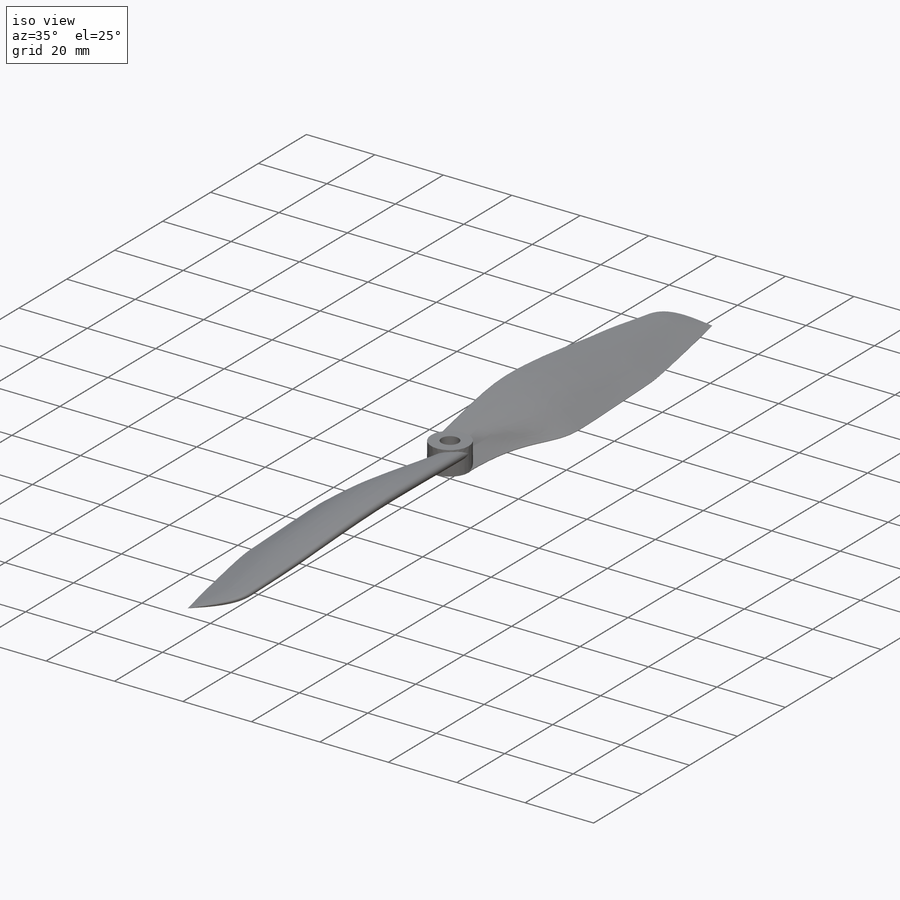
[diagram: iso view]
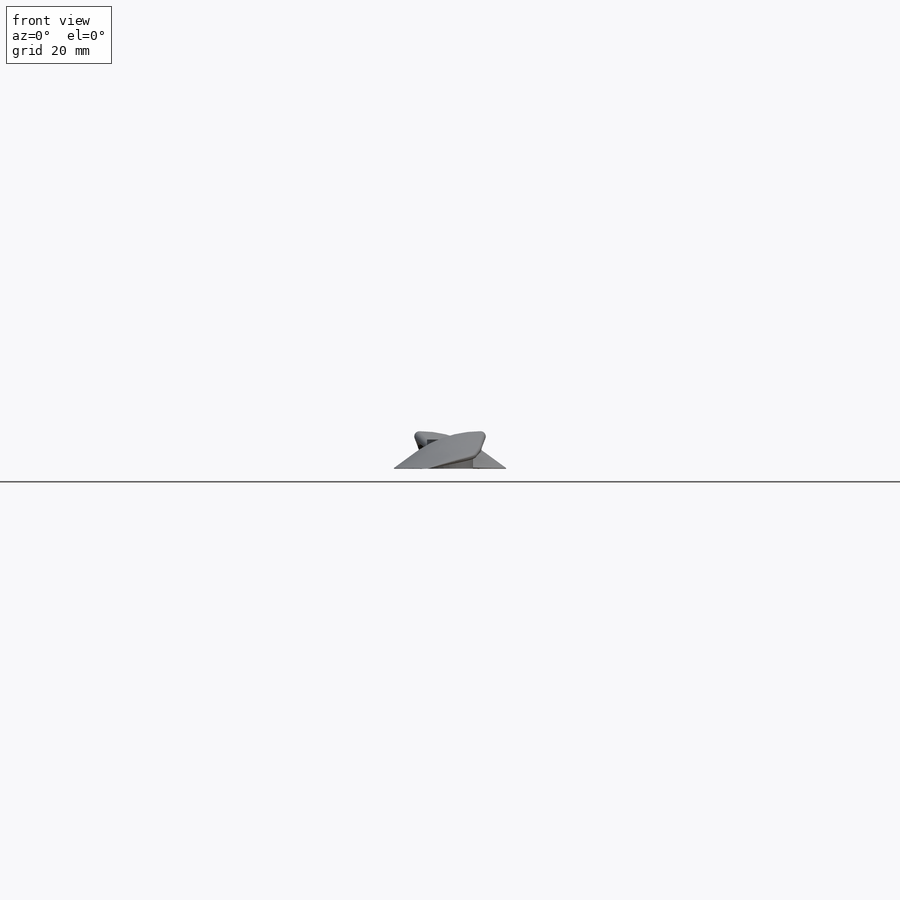
[diagram: front view]
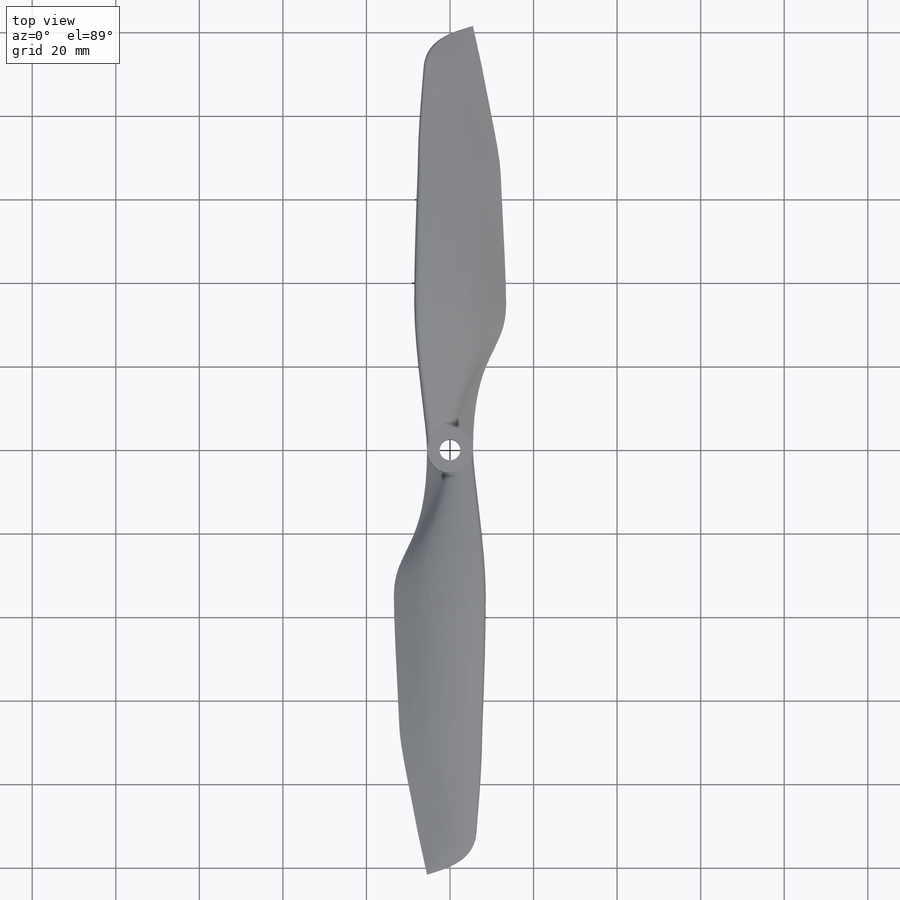
[diagram: top view]
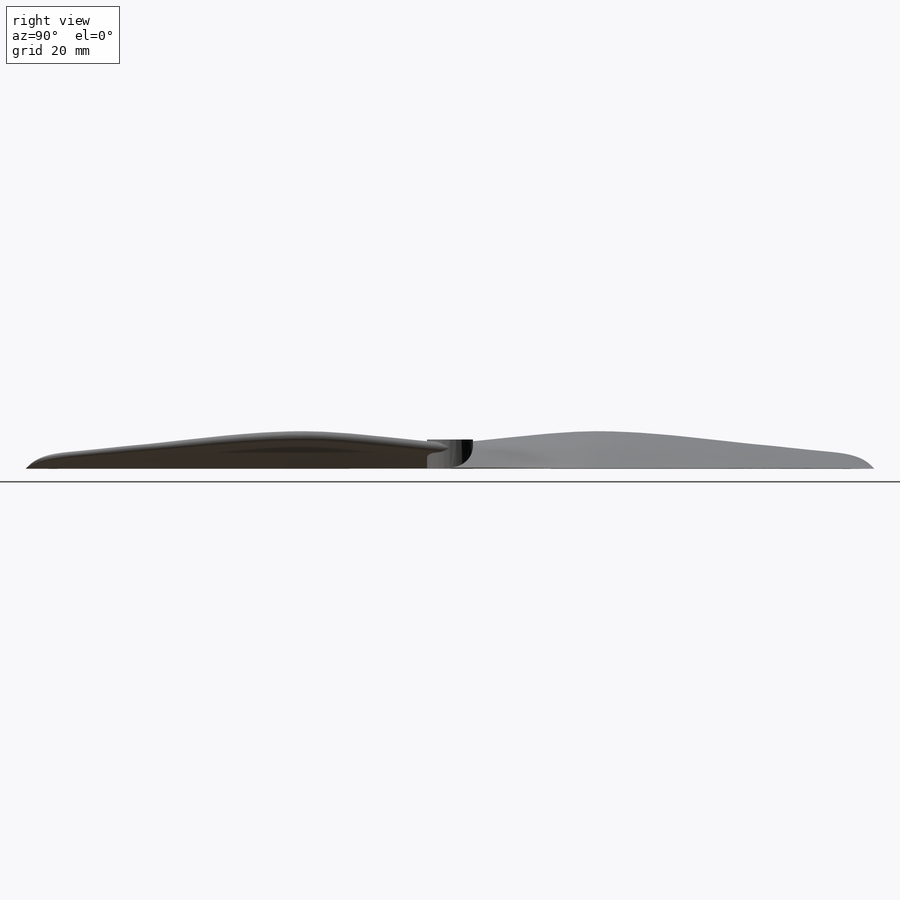
[diagram: right view]
SOLIDWORKS PART (.sldprt)
format: sldprt  version: not decoded by parser v0  size: 856,576 bytes
history: native  units: mm
features: plane x8, sketch x8, material x1, extrude x1, cut_extrude x1, pattern_circular x1 (+10 scaffold rows collapsed)
feature tree (30):
  scaffold x10  (default folders/planes/origin — collapsed)
  material  "ABS"
  plane  "Plan de face"
  plane  "Plan de dessus"
  plane  "Plan de droite"
  sketch  "Esquisse10"  dims[D1=11.0mm D2=5.0mm]
  extrude  "Boss.-Extru.1"  Depth=7mm
  plane  "Plan1"  Offset=101.6mm
  sketch  "Esquisse15"  dims[c1.D1=1.25mm c1.D2=0.15mm c1.D3=1.5mm c2.D2=0.2mm c2.D6=6.0mm c2.D3=4.0mm c2.D4=4.0mm c2.D5=3.5mm c3.D6=4.5mm c3.D7=~10.182338mm c4.D7=45.0deg c4.D3=5.0mm c4.D4=2.0mm c4.D5=2.0mm c4.D2=0.15mm c4.D6=0.25mm c5.D7=0.25mm c5.D1=0.0mm]
  plane  "Plan3"  Offset=35mm
  sketch  "Esquisse16"  dims[c1.D1=0.25mm c1.D2=2.5mm c1.D6=100.0mm c1.D7=15.0mm c1.D8=18.0mm c2.D7=25.0mm c2.D3=14.5mm c2.D4=3.5mm c2.D5=~19.950043mm c3.D5=25.0deg c3.D6=~20.78461mm c4.D6=30.0deg c4.D7=3.25mm c4.D3=22.0mm c4.D4=9.0mm c4.D5=6.0mm c4.2=5.0mm c5.D6=3.0mm c5.D7=~5.534177mm c5.D3=22.0mm]
  plane  "Plan4"  Offset=103mm
  plane  "Plan5"  Offset=91.6mm
  sketch  "Esquisse18"  dims[c1.D1=1.75mm c1.D2=3.0mm c2.D1=7.0mm c2.D2=2.0mm c2.D3=4.5mm c3.D1=5.5mm c3.D2=3.5mm c3.D3=0.0mm]
  sketch  "Esquisse24"  dims[c1.D3=0.1mm c1.D4=0.75mm c1.D5=10.0mm c1.D6=20.0mm c1.D1=4.0mm c1.D2=14.0mm c2.D4=~2.663863mm c2.D7=6.0mm c2.D8=7.0mm c2.D2=14.0mm c2.D5=1.0mm c2.D1=0.0mm]
  plane  "Plan6"  Offset=65mm
  sketch  "Esquisse27"  dims[c1.D1=0.225mm c1.D2=2.0mm c1.D7=18.0mm c1.D9=0.1mm c1.D10=0.75mm c1.D11=20.0mm c1.D8=1.25mm c1.D3=6.75mm c1.D4=8.0mm c1.D5=5.0mm c1.D6=20.0mm c2.D8=5.0mm c2.D12=6.0mm c2.D13=7.0mm c2.D14=13.0mm c2.D15=20.0mm c3.D8=0.5mm]
  sketch  "Esquisse25"  dims[D1=0.0mm]
  sketch  "Esquisse22"  dims[D1=5.0mm]
  cut_extrude  "Enlèv. mat.-Extru.1"  [1 undecoded]
  pattern_circular  "Répétition circulaire3"  Count=2 Angle=180deg
decode coverage: 10 of 11 modeling features carry decoded parameters
note: ~ marks probable driven/reference dimensions
note: 1 parameter value undecoded
note: suppression state not decoded; provenance and decode notes live in map.json
